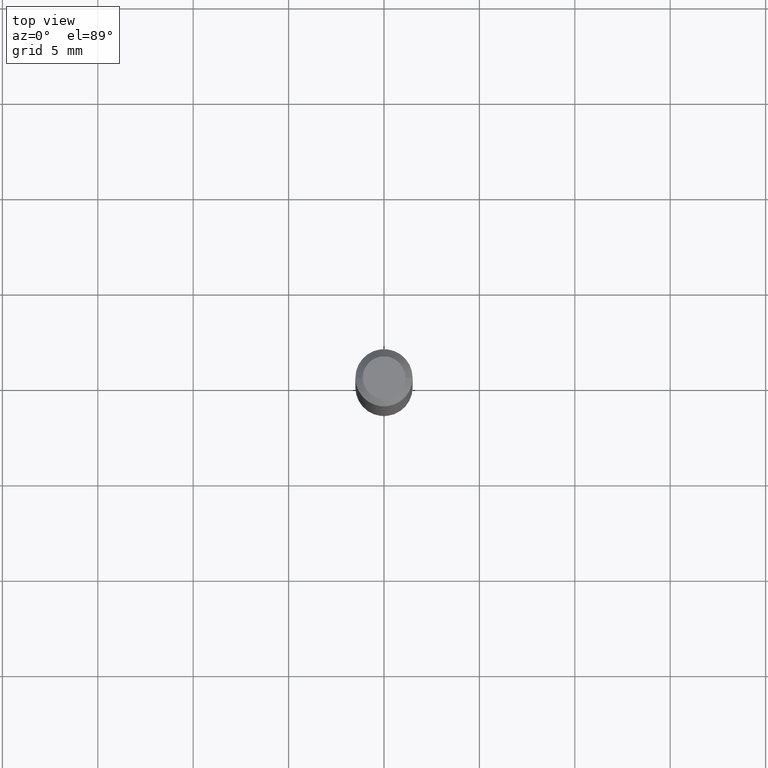
[diagram: clean part render]
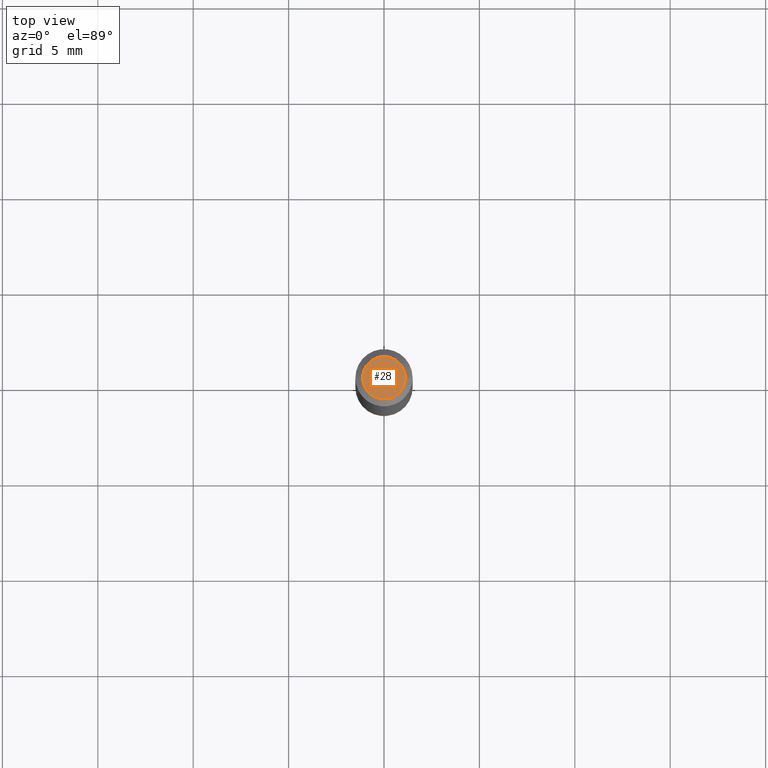
[diagram: same view with one face highlighted and labeled with its STEP entity id]
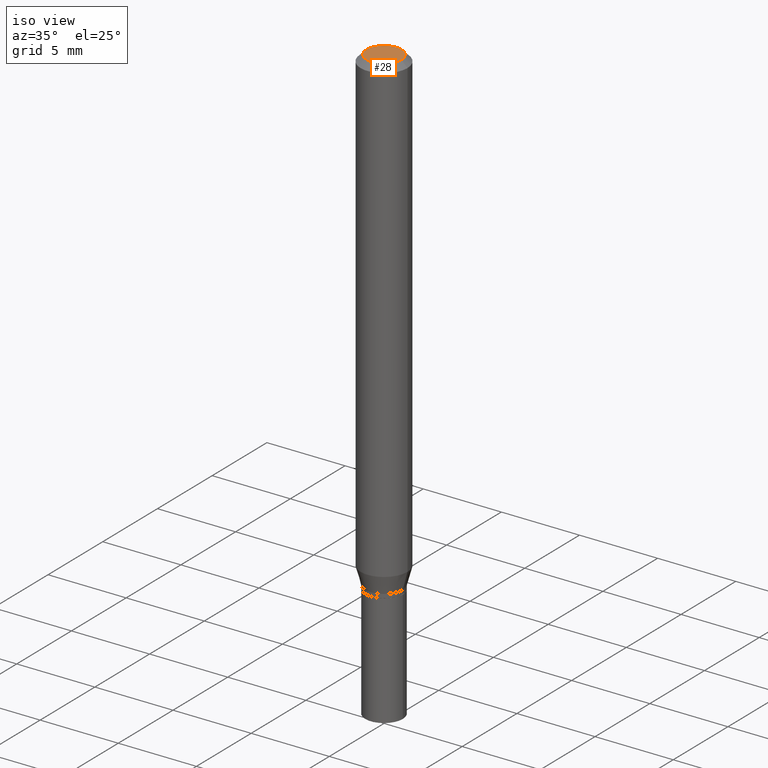
[diagram: same view with one face highlighted and labeled with its STEP entity id]
A machine part, top view. The second image highlights one B-rep face of the part: STEP entity #28.
A second angle (iso view) of the same face is appended — the face is thin or edge-on in the first view.
In plain terms, the highlighted planar face has unit normal (0, -0, -1).
Its self-contained STEP definition (entity closure, byte-faithful):
#5 = AXIS2_PLACEMENT_3D ( 'NONE', #349, #131, #421 ) ;
#26 = CIRCLE ( 'NONE', #367, 0.04404999999999999888 ) ;
#28 = ADVANCED_FACE ( 'NONE', ( #249 ), #341, .F. ) ;
#58 = EDGE_LOOP ( 'NONE', ( #231, #81 ) ) ;
#65 = EDGE_CURVE ( 'NONE', #193, #200, #108, .T. ) ;
#81 = ORIENTED_EDGE ( 'NONE', *, *, #65, .T. ) ;
#89 = AXIS2_PLACEMENT_3D ( 'NONE', #94, #378, #205 ) ;
#94 = CARTESIAN_POINT ( 'NONE',  ( 3.075995059520799729E-16, 0.04404999999999999888, -2.583469029759998662E-16 ) ) ;
#99 = CARTESIAN_POINT ( 'NONE',  ( 0.04404999999999999888, -3.798447818264464023E-16, -2.090942999999162343E-16 ) ) ;
#108 = CIRCLE ( 'NONE', #5, 0.04404999999999999888 ) ;
#131 = DIRECTION ( 'NONE',  ( -2.445468806185136597E-29, 3.491481338843145583E-15, 1.000000000000000000 ) ) ;
#163 = CARTESIAN_POINT ( 'NONE',  ( -0.04404999999999999888, 3.337856159934030687E-16, -2.090942999999208688E-16 ) ) ;
#183 = EDGE_CURVE ( 'NONE', #200, #193, #26, .T. ) ;
#193 = VERTEX_POINT ( 'NONE', #99 ) ;
#199 = DIRECTION ( 'NONE',  ( 1.000000000000000000, -6.982962677686265922E-15, 4.888540261209747396E-29 ) ) ;
#200 = VERTEX_POINT ( 'NONE', #163 ) ;
#205 = DIRECTION ( 'NONE',  ( -1.000000000000000000, 6.982962677686265922E-15, -4.876176775795935793E-29 ) ) ;
#231 = ORIENTED_EDGE ( 'NONE', *, *, #183, .T. ) ;
#249 = FACE_OUTER_BOUND ( 'NONE', #58, .T. ) ;
#307 = CARTESIAN_POINT ( 'NONE',  ( 5.113335882009178277E-45, -7.300488465081862281E-31, -2.090942999999186255E-16 ) ) ;
#341 = PLANE ( 'NONE',  #89 ) ;
#342 = DIRECTION ( 'NONE',  ( -2.445468806185136597E-29, 3.491481338843145583E-15, 1.000000000000000000 ) ) ;
#349 = CARTESIAN_POINT ( 'NONE',  ( 5.113335882009178277E-45, -7.300488465081862281E-31, -2.090942999999186255E-16 ) ) ;
#367 = AXIS2_PLACEMENT_3D ( 'NONE', #307, #342, #199 ) ;
#378 = DIRECTION ( 'NONE',  ( 2.438088387897960049E-29, -3.491481338843145188E-15, -1.000000000000000000 ) ) ;
#421 = DIRECTION ( 'NONE',  ( 1.000000000000000000, -6.982962677686265922E-15, 4.888540261209747396E-29 ) ) ;